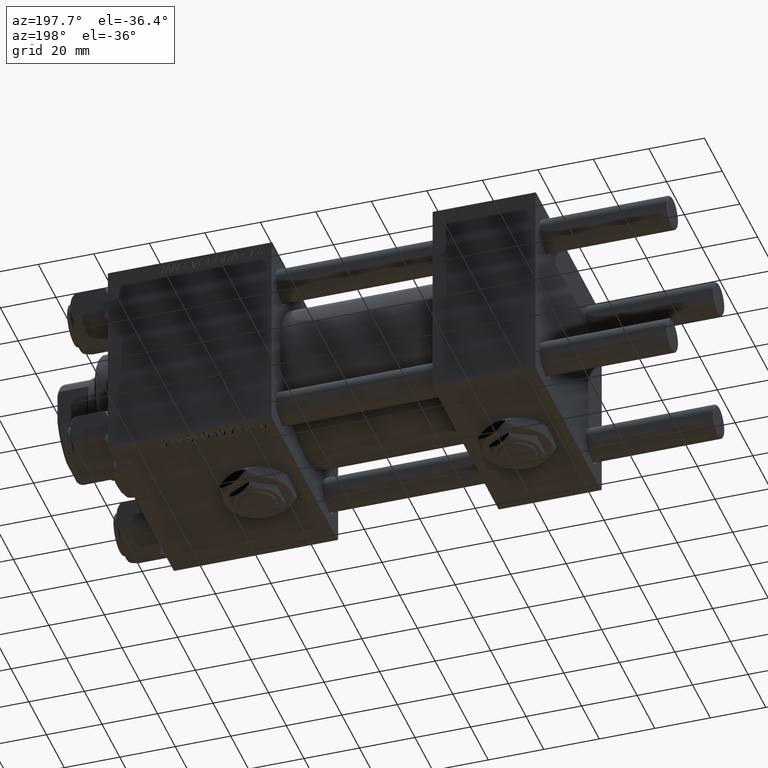
[diagram: clean part render]
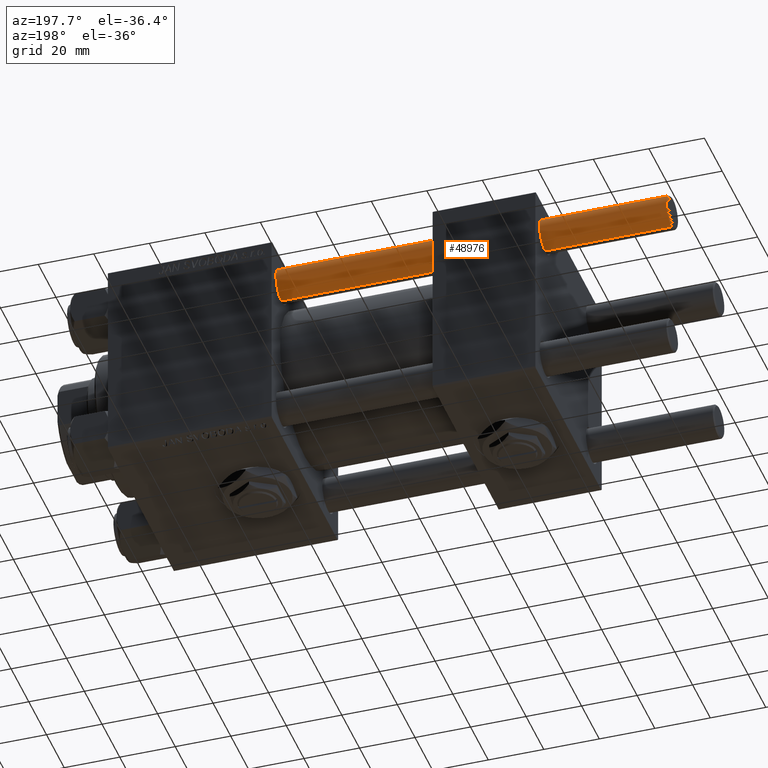
[diagram: same view with one face highlighted and labeled with its STEP entity id]
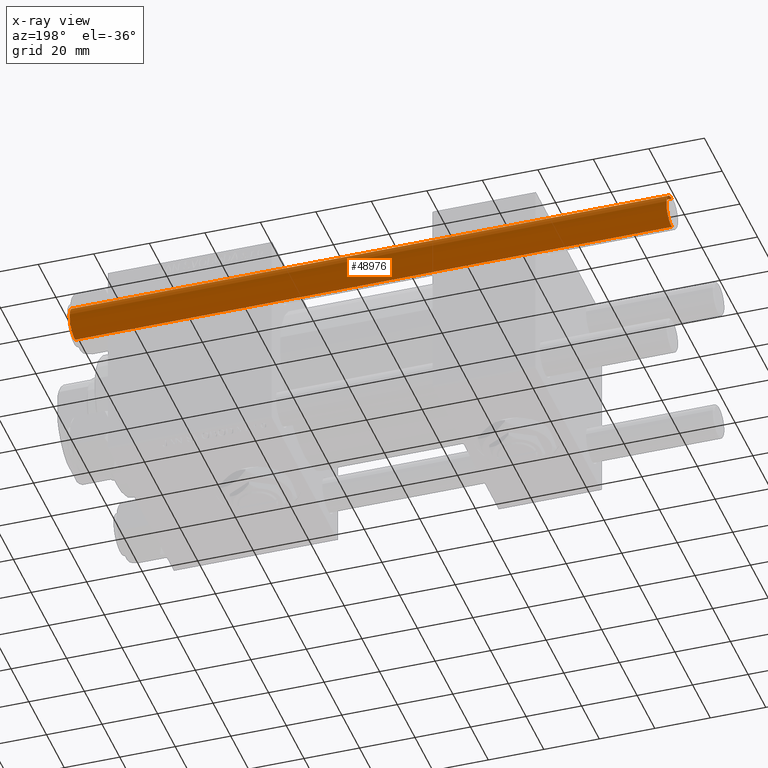
[diagram: x-ray of the same camera — body ghosted, the highlighted face saturated]
A machine part, auxiliary view. The second image highlights one B-rep face of the part: STEP entity #48976.
The next image is the same camera in x-ray: the body ghosted, the highlighted face saturated — about 0% of this face is hidden behind the body in this view.
In plain terms, the highlighted cylindrical surface (edge-blend (fillet) strip) has radius 6 mm, axis along (-1, -0, -0).
Its self-contained STEP definition (entity closure, byte-faithful):
#43 = EDGE_CURVE ( 'NONE', #1340, #7006, #6431, .T. ) ;
#1340 = VERTEX_POINT ( 'NONE', #48530 ) ;
#1529 = CARTESIAN_POINT ( 'NONE',  ( 0.000000000000000000, 0.000000000000000000, 0.5000000000000004441 ) ) ;
#3858 = FACE_OUTER_BOUND ( 'NONE', #27545, .T. ) ;
#3898 = EDGE_CURVE ( 'NONE', #22688, #1340, #5399, .T. ) ;
#4416 = VECTOR ( 'NONE', #10099, 1000.000000000000000 ) ;
#5399 = CIRCLE ( 'NONE', #7091, 6.000000000000000888 ) ;
#6431 = LINE ( 'NONE', #30516, #4416 ) ;
#7006 = VERTEX_POINT ( 'NONE', #22597 ) ;
#7091 = AXIS2_PLACEMENT_3D ( 'NONE', #9277, #25244, #33109 ) ;
#9277 = CARTESIAN_POINT ( 'NONE',  ( 0.000000000000000000, 0.000000000000000000, 215.5000000000000284 ) ) ;
#10099 = DIRECTION ( 'NONE',  ( -0.000000000000000000, -0.000000000000000000, -1.000000000000000000 ) ) ;
#14142 = LINE ( 'NONE', #25913, #41592 ) ;
#15136 = CARTESIAN_POINT ( 'NONE',  ( 0.000000000000000000, 0.000000000000000000, 216.0000000000000000 ) ) ;
#15906 = CYLINDRICAL_SURFACE ( 'NONE', #39348, 6.000000000000000888 ) ;
#16807 = VERTEX_POINT ( 'NONE', #25437 ) ;
#19835 = DIRECTION ( 'NONE',  ( -1.000000000000000000, 0.000000000000000000, 0.000000000000000000 ) ) ;
#22597 = CARTESIAN_POINT ( 'NONE',  ( 6.000000000000000888, 7.347880794884120722E-16, 0.5000000000000004441 ) ) ;
#22688 = VERTEX_POINT ( 'NONE', #37132 ) ;
#25244 = DIRECTION ( 'NONE',  ( 0.000000000000000000, 0.000000000000000000, -1.000000000000000000 ) ) ;
#25437 = CARTESIAN_POINT ( 'NONE',  ( -6.000000000000000888, 0.000000000000000000, 0.5000000000000004441 ) ) ;
#25913 = CARTESIAN_POINT ( 'NONE',  ( -6.000000000000000888, 0.000000000000000000, 216.0000000000000000 ) ) ;
#27545 = EDGE_LOOP ( 'NONE', ( #39509, #40771, #41825, #32923 ) ) ;
#29589 = CIRCLE ( 'NONE', #45454, 6.000000000000000888 ) ;
#30113 = DIRECTION ( 'NONE',  ( -0.000000000000000000, -0.000000000000000000, -1.000000000000000000 ) ) ;
#30516 = CARTESIAN_POINT ( 'NONE',  ( 6.000000000000000888, 7.347880794884120722E-16, 216.0000000000000000 ) ) ;
#32923 = ORIENTED_EDGE ( 'NONE', *, *, #40414, .F. ) ;
#33109 = DIRECTION ( 'NONE',  ( 1.000000000000000000, 0.000000000000000000, 0.000000000000000000 ) ) ;
#35195 = EDGE_CURVE ( 'NONE', #7006, #16807, #29589, .T. ) ;
#37132 = CARTESIAN_POINT ( 'NONE',  ( -6.000000000000000888, 0.000000000000000000, 215.5000000000000284 ) ) ;
#39348 = AXIS2_PLACEMENT_3D ( 'NONE', #15136, #47070, #19835 ) ;
#39509 = ORIENTED_EDGE ( 'NONE', *, *, #3898, .T. ) ;
#40414 = EDGE_CURVE ( 'NONE', #22688, #16807, #14142, .T. ) ;
#40555 = DIRECTION ( 'NONE',  ( -0.000000000000000000, -0.000000000000000000, 1.000000000000000000 ) ) ;
#40771 = ORIENTED_EDGE ( 'NONE', *, *, #43, .T. ) ;
#41592 = VECTOR ( 'NONE', #30113, 1000.000000000000000 ) ;
#41593 = DIRECTION ( 'NONE',  ( 1.000000000000000000, 0.000000000000000000, 0.000000000000000000 ) ) ;
#41825 = ORIENTED_EDGE ( 'NONE', *, *, #35195, .T. ) ;
#45454 = AXIS2_PLACEMENT_3D ( 'NONE', #1529, #40555, #41593 ) ;
#47070 = DIRECTION ( 'NONE',  ( -0.000000000000000000, -0.000000000000000000, -1.000000000000000000 ) ) ;
#48530 = CARTESIAN_POINT ( 'NONE',  ( 6.000000000000000888, 7.347880794884120722E-16, 215.5000000000000284 ) ) ;
#48976 = ADVANCED_FACE ( 'NONE', ( #3858 ), #15906, .T. ) ;